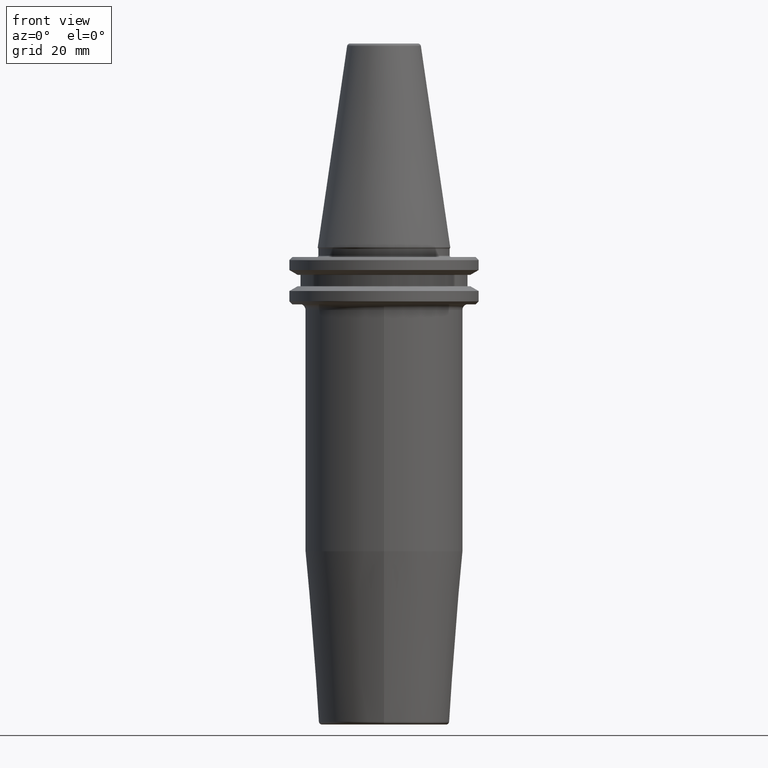
[diagram: clean part render]
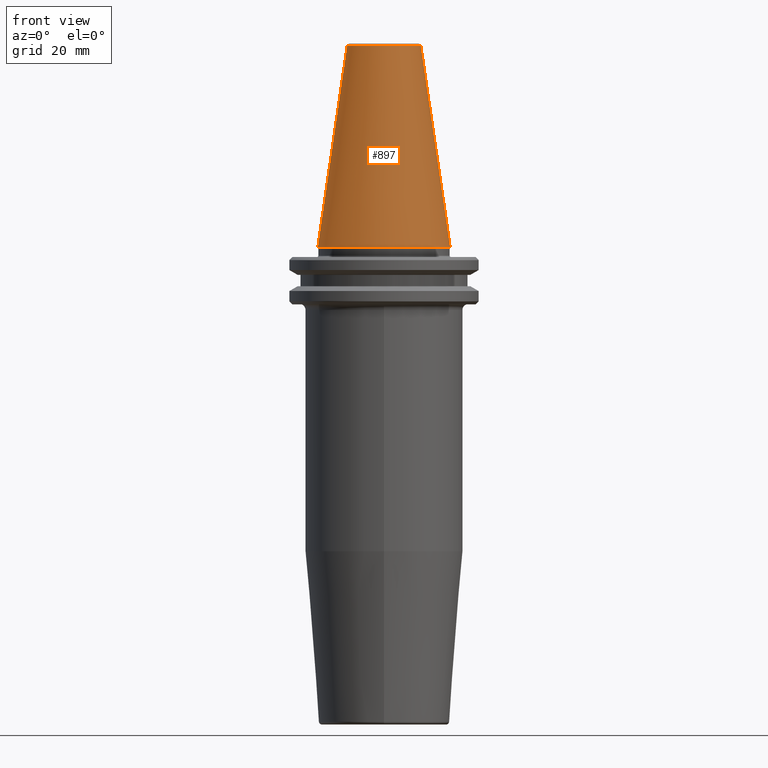
[diagram: same view with one face highlighted and labeled with its STEP entity id]
A machine part, front view. The second image highlights one B-rep face of the part: STEP entity #897.
In plain terms, the highlighted conical surface has half-angle 8.297 deg.
Its self-contained STEP definition (entity closure, byte-faithful):
#26 = CARTESIAN_POINT ( 'NONE',  ( -12.37469537611110800, 0.0000000000000000000, 67.54430822726729400 ) ) ;
#45 = DIRECTION ( 'NONE',  ( 1.000000000000000000, 0.0000000000000000000, 0.0000000000000000000 ) ) ;
#74 = EDGE_LOOP ( 'NONE', ( #890, #426, #984, #532 ) ) ;
#86 = LINE ( 'NONE', #26, #1094 ) ;
#149 = DIRECTION ( 'NONE',  ( -0.0000000000000000000, -0.0000000000000000000, 1.000000000000000000 ) ) ;
#170 = LINE ( 'NONE', #820, #1165 ) ;
#210 = CARTESIAN_POINT ( 'NONE',  ( -22.22500000000000500, 2.721777511104993200E-015, 0.0000000000000000000 ) ) ;
#211 = CARTESIAN_POINT ( 'NONE',  ( 12.37469537611110800, 2.118620309691397700E-015, 67.54430822726729400 ) ) ;
#232 = DIRECTION ( 'NONE',  ( -0.1443082272673071000, 0.0000000000000000000, -0.9895327864921743500 ) ) ;
#267 = DIRECTION ( 'NONE',  ( 1.000000000000000000, 0.0000000000000000000, 0.0000000000000000000 ) ) ;
#271 = FACE_OUTER_BOUND ( 'NONE', #74, .T. ) ;
#277 = VERTEX_POINT ( 'NONE', #211 ) ;
#280 = EDGE_CURVE ( 'NONE', #447, #816, #86, .T. ) ;
#284 = DIRECTION ( 'NONE',  ( -1.000000000000000000, 0.0000000000000000000, 0.0000000000000000000 ) ) ;
#333 = CIRCLE ( 'NONE', #1166, 12.37469537611110800 ) ;
#378 = DIRECTION ( 'NONE',  ( 0.0000000000000000000, 0.0000000000000000000, -1.000000000000000000 ) ) ;
#426 = ORIENTED_EDGE ( 'NONE', *, *, #859, .F. ) ;
#438 = AXIS2_PLACEMENT_3D ( 'NONE', #475, #378, #284 ) ;
#441 = EDGE_CURVE ( 'NONE', #277, #1220, #170, .T. ) ;
#447 = VERTEX_POINT ( 'NONE', #667 ) ;
#475 = CARTESIAN_POINT ( 'NONE',  ( 0.0000000000000000000, 0.0000000000000000000, 67.54430822726729400 ) ) ;
#483 = DIRECTION ( 'NONE',  ( 0.1443082272673071000, 1.767266086135364600E-017, -0.9895327864921743500 ) ) ;
#532 = ORIENTED_EDGE ( 'NONE', *, *, #1114, .T. ) ;
#626 = DIRECTION ( 'NONE',  ( -0.0000000000000000000, -0.0000000000000000000, 1.000000000000000000 ) ) ;
#667 = CARTESIAN_POINT ( 'NONE',  ( -12.37469537611110800, 0.0000000000000000000, 67.54430822726729400 ) ) ;
#816 = VERTEX_POINT ( 'NONE', #210 ) ;
#820 = CARTESIAN_POINT ( 'NONE',  ( 12.37469537611110800, 1.515463108277802100E-015, 67.54430822726729400 ) ) ;
#859 = EDGE_CURVE ( 'NONE', #447, #277, #333, .T. ) ;
#890 = ORIENTED_EDGE ( 'NONE', *, *, #441, .F. ) ;
#897 = ADVANCED_FACE ( 'NONE', ( #271 ), #1244, .T. ) ;
#928 = CARTESIAN_POINT ( 'NONE',  ( 22.22500000000000500, 0.0000000000000000000, 0.0000000000000000000 ) ) ;
#984 = ORIENTED_EDGE ( 'NONE', *, *, #280, .T. ) ;
#1094 = VECTOR ( 'NONE', #232, 1000.000000000000000 ) ;
#1114 = EDGE_CURVE ( 'NONE', #816, #1220, #1259, .T. ) ;
#1124 = AXIS2_PLACEMENT_3D ( 'NONE', #1199, #626, #45 ) ;
#1165 = VECTOR ( 'NONE', #483, 1000.000000000000000 ) ;
#1166 = AXIS2_PLACEMENT_3D ( 'NONE', #1192, #149, #267 ) ;
#1192 = CARTESIAN_POINT ( 'NONE',  ( 0.0000000000000000000, 0.0000000000000000000, 67.54430822726729400 ) ) ;
#1199 = CARTESIAN_POINT ( 'NONE',  ( 0.0000000000000000000, 0.0000000000000000000, 0.0000000000000000000 ) ) ;
#1220 = VERTEX_POINT ( 'NONE', #928 ) ;
#1244 = CONICAL_SURFACE ( 'NONE', #438, 12.37469537611110800, 0.1448138465474191100 ) ;
#1259 = CIRCLE ( 'NONE', #1124, 22.22500000000000500 ) ;